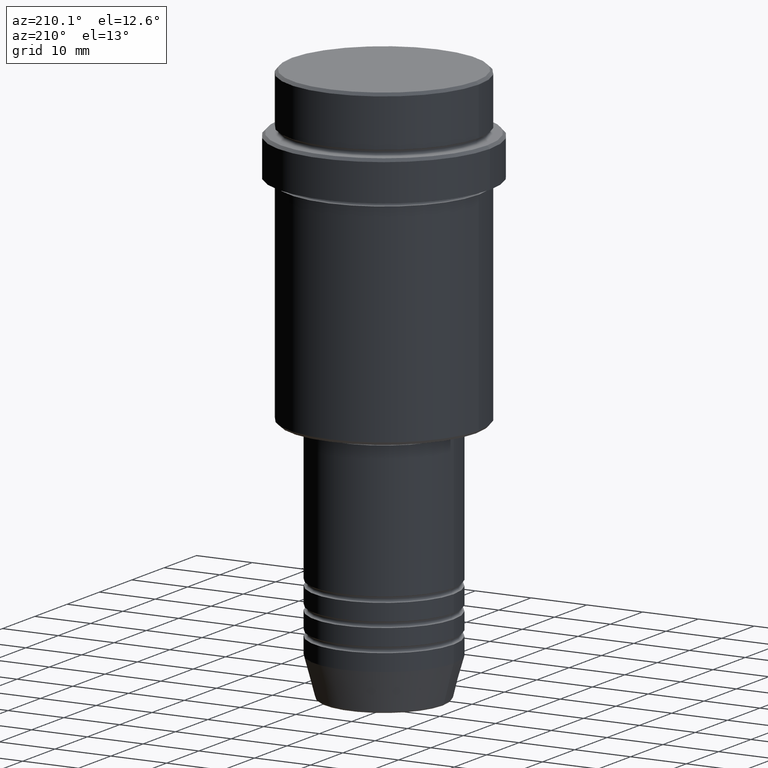
[diagram: clean part render]
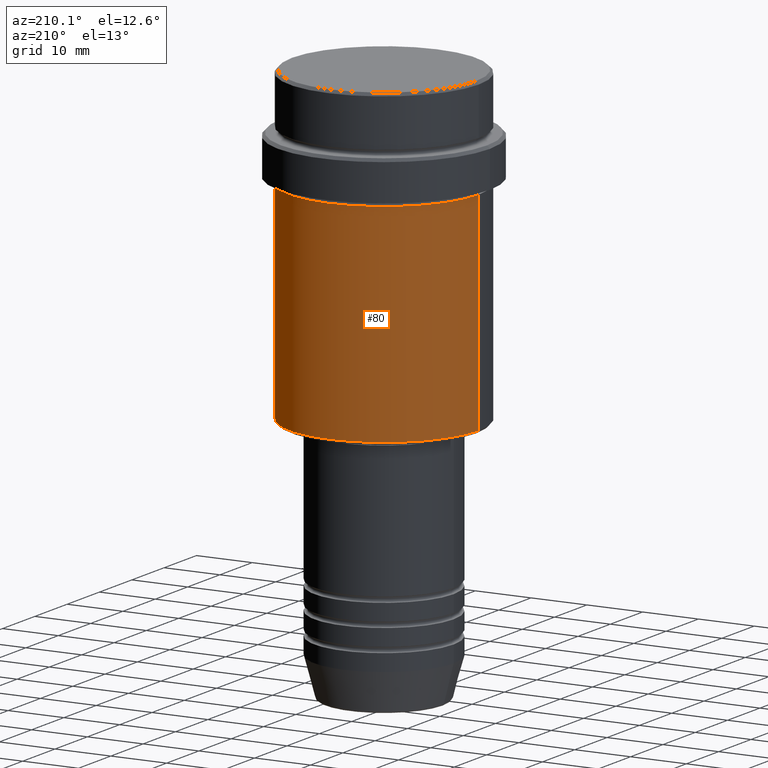
[diagram: same view with one face highlighted and labeled with its STEP entity id]
A machine part, auxiliary view. The second image highlights one B-rep face of the part: STEP entity #80.
In plain terms, the highlighted cylindrical surface (partial cylindrical patch) has radius 17 mm, axis along (-0, -0, 1).
Its self-contained STEP definition (entity closure, byte-faithful):
#36 = DIRECTION ( 'NONE',  ( -1.000000000000000000, 0.000000000000000000, 0.000000000000000000 ) ) ;
#45 = CARTESIAN_POINT ( 'NONE',  ( 0.000000000000000000, 0.000000000000000000, -55.50000000000000000 ) ) ;
#55 = CARTESIAN_POINT ( 'NONE',  ( 0.000000000000000000, 0.000000000000000000, -18.00000000000000711 ) ) ;
#80 = ADVANCED_FACE ( 'NONE', ( #923 ), #508, .T. ) ;
#81 = CIRCLE ( 'NONE', #586, 16.99999999999999289 ) ;
#135 = CARTESIAN_POINT ( 'NONE',  ( 16.99999999999999289, 0.000000000000000000, -18.00000000000000711 ) ) ;
#137 = ORIENTED_EDGE ( 'NONE', *, *, #754, .F. ) ;
#228 = EDGE_CURVE ( 'NONE', #537, #733, #649, .T. ) ;
#253 = DIRECTION ( 'NONE',  ( 1.000000000000000000, 0.000000000000000000, 0.000000000000000000 ) ) ;
#299 = CARTESIAN_POINT ( 'NONE',  ( -16.99999999999999645, 2.081899558550499885E-15, 0.000000000000000000 ) ) ;
#335 = EDGE_CURVE ( 'NONE', #694, #733, #81, .T. ) ;
#342 = CARTESIAN_POINT ( 'NONE',  ( -16.99999999999999289, 2.081899558550499885E-15, -18.00000000000000711 ) ) ;
#406 = AXIS2_PLACEMENT_3D ( 'NONE', #941, #1245, #1382 ) ;
#508 = CYLINDRICAL_SURFACE ( 'NONE', #406, 16.99999999999999645 ) ;
#532 = ORIENTED_EDGE ( 'NONE', *, *, #228, .T. ) ;
#537 = VERTEX_POINT ( 'NONE', #628 ) ;
#586 = AXIS2_PLACEMENT_3D ( 'NONE', #55, #880, #253 ) ;
#628 = CARTESIAN_POINT ( 'NONE',  ( -16.99999999999999645, 2.081899558550499885E-15, -55.50000000000000000 ) ) ;
#634 = VECTOR ( 'NONE', #1287, 1000.000000000000000 ) ;
#649 = LINE ( 'NONE', #299, #634 ) ;
#654 = DIRECTION ( 'NONE',  ( -0.000000000000000000, -0.000000000000000000, 1.000000000000000000 ) ) ;
#661 = CIRCLE ( 'NONE', #1003, 16.99999999999999645 ) ;
#670 = CARTESIAN_POINT ( 'NONE',  ( 16.99999999999999645, 0.000000000000000000, 0.000000000000000000 ) ) ;
#694 = VERTEX_POINT ( 'NONE', #135 ) ;
#733 = VERTEX_POINT ( 'NONE', #342 ) ;
#754 = EDGE_CURVE ( 'NONE', #1210, #694, #868, .T. ) ;
#868 = LINE ( 'NONE', #670, #1344 ) ;
#880 = DIRECTION ( 'NONE',  ( -0.000000000000000000, -0.000000000000000000, 1.000000000000000000 ) ) ;
#906 = ORIENTED_EDGE ( 'NONE', *, *, #1332, .T. ) ;
#923 = FACE_OUTER_BOUND ( 'NONE', #1408, .T. ) ;
#925 = ORIENTED_EDGE ( 'NONE', *, *, #335, .F. ) ;
#941 = CARTESIAN_POINT ( 'NONE',  ( 0.000000000000000000, 0.000000000000000000, 0.000000000000000000 ) ) ;
#1003 = AXIS2_PLACEMENT_3D ( 'NONE', #45, #1016, #36 ) ;
#1016 = DIRECTION ( 'NONE',  ( -0.000000000000000000, -0.000000000000000000, 1.000000000000000000 ) ) ;
#1210 = VERTEX_POINT ( 'NONE', #1385 ) ;
#1245 = DIRECTION ( 'NONE',  ( -0.000000000000000000, -0.000000000000000000, 1.000000000000000000 ) ) ;
#1287 = DIRECTION ( 'NONE',  ( -0.000000000000000000, -0.000000000000000000, 1.000000000000000000 ) ) ;
#1332 = EDGE_CURVE ( 'NONE', #1210, #537, #661, .T. ) ;
#1344 = VECTOR ( 'NONE', #654, 1000.000000000000000 ) ;
#1382 = DIRECTION ( 'NONE',  ( 1.000000000000000000, 0.000000000000000000, 0.000000000000000000 ) ) ;
#1385 = CARTESIAN_POINT ( 'NONE',  ( 16.99999999999999645, 0.000000000000000000, -55.50000000000000000 ) ) ;
#1408 = EDGE_LOOP ( 'NONE', ( #906, #532, #925, #137 ) ) ;